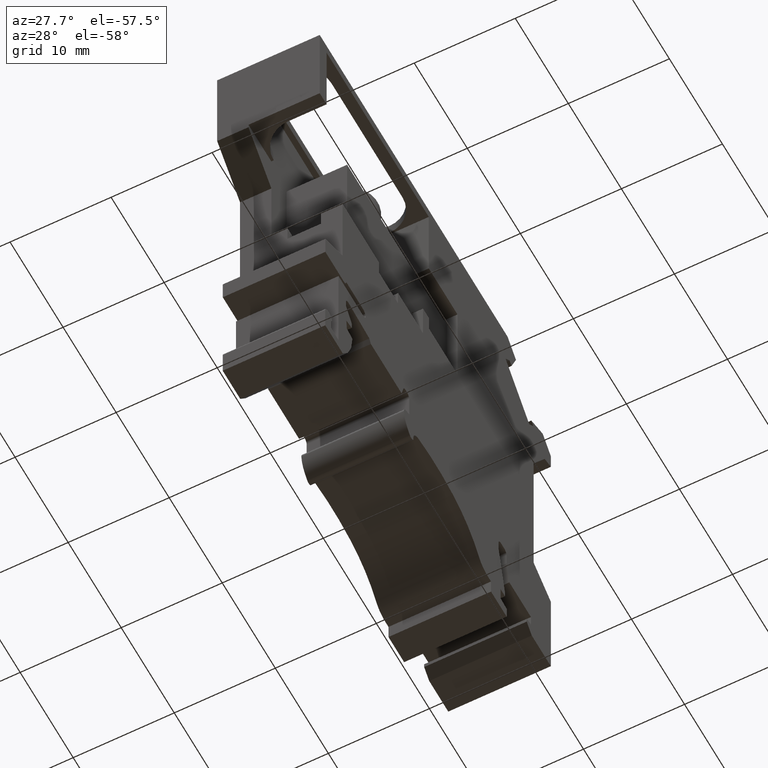
[diagram: clean part render]
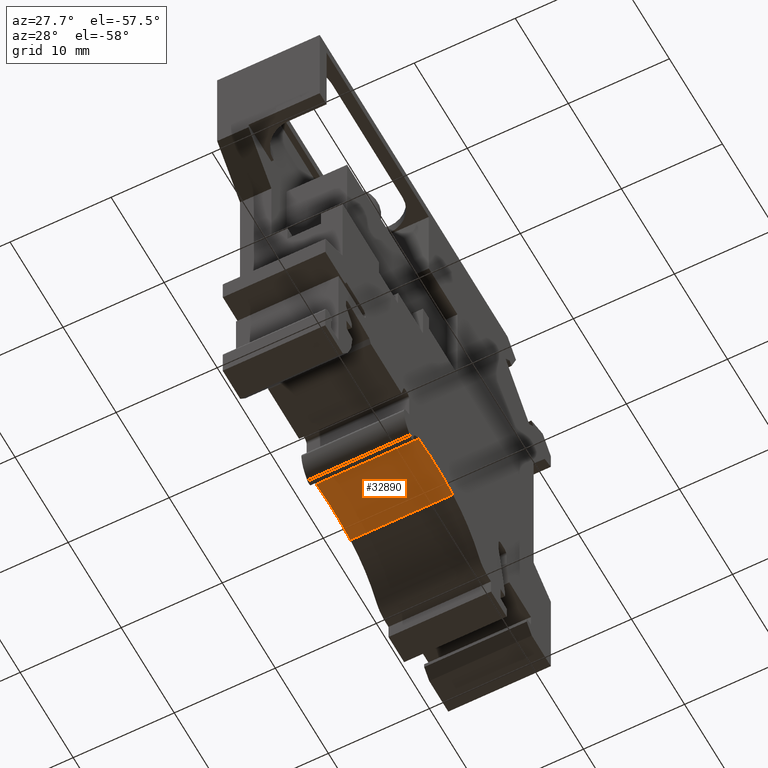
[diagram: same view with one face highlighted and labeled with its STEP entity id]
A machine part, auxiliary view. The second image highlights one B-rep face of the part: STEP entity #32890.
In plain terms, the highlighted cylindrical surface (partial cylindrical patch) has radius 16.2 mm, axis along (1, 0, 0).
Its self-contained STEP definition (entity closure, byte-faithful):
#4020=CARTESIAN_POINT('',(28.1495983262149,-3.92335516022672,0.));
#4030=VERTEX_POINT('',#4020);
#4060=CARTESIAN_POINT('',(31.1591997327283,-19.8413418222991,0.));
#4070=DIRECTION('',(0.,0.,1.));
#4080=DIRECTION('',(1.,0.,0.));
#4090=AXIS2_PLACEMENT_3D('',#4060,#4070,#4080);
#4100=CIRCLE('',#4090,16.2000000000001);
#4110=CARTESIAN_POINT('',(34.620024337029,-4.01532864594071,0.));
#4120=VERTEX_POINT('',#4110);
#4130=EDGE_CURVE('',#4120,#4030,#4100,.T.);
#25390=CARTESIAN_POINT('',(28.1495983262149,-3.9233551602267,10.15));
#25400=VERTEX_POINT('',#25390);
#25450=CARTESIAN_POINT('',(28.1495983262149,-3.92335516022672,12.));
#25460=DIRECTION('',(0.,0.,-1.));
#25470=VECTOR('',#25460,1.);
#25480=LINE('',#25450,#25470);
#25490=EDGE_CURVE('',#25400,#4030,#25480,.T.);
#32650=CARTESIAN_POINT('',(31.1591997327283,-19.8413418222991,12.));
#32660=DIRECTION('',(0.,0.,1.));
#32670=DIRECTION('',(1.,0.,0.));
#32680=AXIS2_PLACEMENT_3D('',#32650,#32660,#32670);
#32690=CYLINDRICAL_SURFACE('',#32680,16.2000000000001);
#32700=CARTESIAN_POINT('',(31.1591997327283,-19.8413418222991,10.15));
#32710=DIRECTION('',(0.,0.,1.));
#32720=DIRECTION('',(1.,0.,0.));
#32730=AXIS2_PLACEMENT_3D('',#32700,#32710,#32720);
#32740=CIRCLE('',#32730,16.2000000000001);
#32750=CARTESIAN_POINT('',(34.620024337029,-4.01532864594071,10.15));
#32760=VERTEX_POINT('',#32750);
#32770=EDGE_CURVE('',#32760,#25400,#32740,.T.);
#32780=ORIENTED_EDGE('',*,*,#32770,.T.);
#32790=CARTESIAN_POINT('',(34.620024337029,-4.01532864594071,12.));
#32800=DIRECTION('',(0.,0.,-1.));
#32810=VECTOR('',#32800,1.);
#32820=LINE('',#32790,#32810);
#32830=EDGE_CURVE('',#32760,#4120,#32820,.T.);
#32840=ORIENTED_EDGE('',*,*,#32830,.F.);
#32850=ORIENTED_EDGE('',*,*,#4130,.F.);
#32860=ORIENTED_EDGE('',*,*,#25490,.T.);
#32870=EDGE_LOOP('',(#32860,#32850,#32840,#32780));
#32880=FACE_OUTER_BOUND('',#32870,.T.);
#32890=ADVANCED_FACE('',(#32880),#32690,.F.);